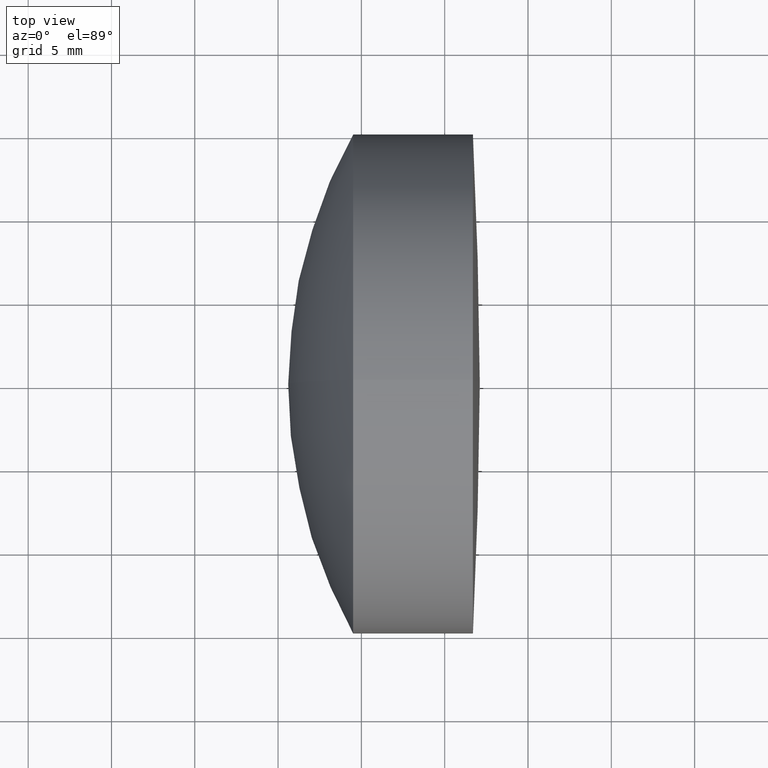
[diagram: clean part render]
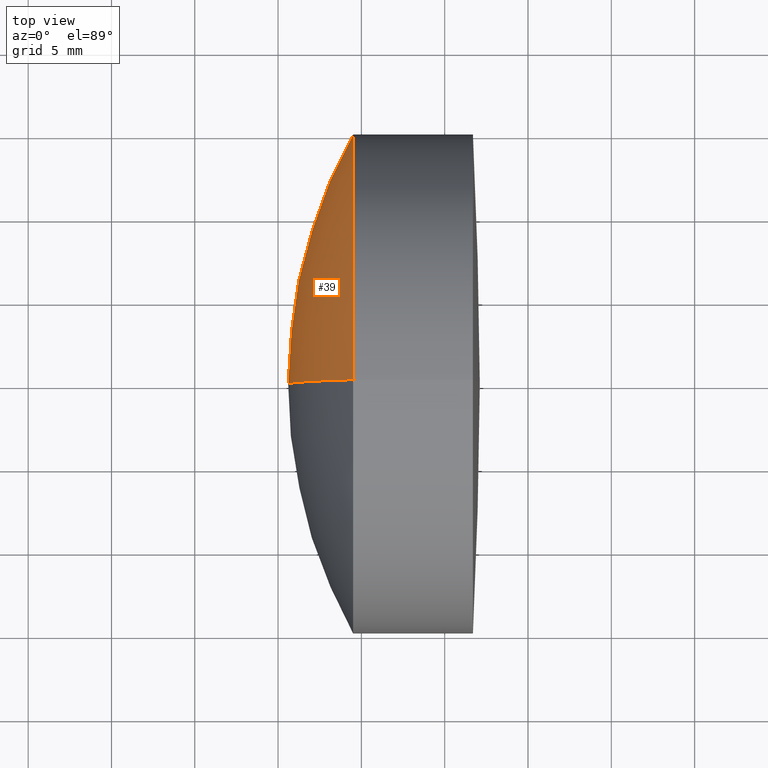
[diagram: same view with one face highlighted and labeled with its STEP entity id]
A machine part, top view. The second image highlights one B-rep face of the part: STEP entity #39.
In plain terms, the highlighted spherical surface has radius 30.8 mm.
Its self-contained STEP definition (entity closure, byte-faithful):
#11 = VERTEX_POINT ( 'NONE', #252 ) ;
#12 = ORIENTED_EDGE ( 'NONE', *, *, #108, .T. ) ;
#39 = ADVANCED_FACE ( 'NONE', ( #332 ), #110, .T. ) ;
#50 = DIRECTION ( 'NONE',  ( 0.0000000000000000000, 0.0000000000000000000, -1.000000000000000000 ) ) ;
#73 = DIRECTION ( 'NONE',  ( -0.0000000000000000000, 1.000000000000000000, 1.224646799147353200E-016 ) ) ;
#81 = CIRCLE ( 'NONE', #182, 30.79999999999997900 ) ;
#82 = CARTESIAN_POINT ( 'NONE',  ( 366.4069652250823900, 0.0000000000000000000, -1.604193031049230700E-015 ) ) ;
#84 = DIRECTION ( 'NONE',  ( 0.0000000000000000000, 0.0000000000000000000, 1.000000000000000000 ) ) ;
#85 = EDGE_LOOP ( 'NONE', ( #255, #12, #118 ) ) ;
#93 = AXIS2_PLACEMENT_3D ( 'NONE', #119, #277, #84 ) ;
#108 = EDGE_CURVE ( 'NONE', #11, #331, #261, .T. ) ;
#110 = SPHERICAL_SURFACE ( 'NONE', #259, 30.79999999999997900 ) ;
#118 = ORIENTED_EDGE ( 'NONE', *, *, #335, .F. ) ;
#119 = CARTESIAN_POINT ( 'NONE',  ( 339.5064076100440500, 0.0000000000000000000, 0.0000000000000000000 ) ) ;
#125 = CIRCLE ( 'NONE', #93, 14.99999999999999800 ) ;
#164 = CARTESIAN_POINT ( 'NONE',  ( 366.4069652250823900, 0.0000000000000000000, -1.604193031049230700E-015 ) ) ;
#170 = CARTESIAN_POINT ( 'NONE',  ( 339.5064076100440500, 0.0000000000000000000, 15.00000000000001800 ) ) ;
#182 = AXIS2_PLACEMENT_3D ( 'NONE', #82, #242, #50 ) ;
#204 = CARTESIAN_POINT ( 'NONE',  ( 366.4069652250823900, 0.0000000000000000000, -1.604193031049230700E-015 ) ) ;
#208 = AXIS2_PLACEMENT_3D ( 'NONE', #204, #73, #237 ) ;
#237 = DIRECTION ( 'NONE',  ( 0.0000000000000000000, -1.224646799147353200E-016, 1.000000000000000000 ) ) ;
#242 = DIRECTION ( 'NONE',  ( 0.0000000000000000000, -1.000000000000000000, 0.0000000000000000000 ) ) ;
#252 = CARTESIAN_POINT ( 'NONE',  ( 339.5064076100440500, 1.836970198721032300E-015, -15.00000000000002000 ) ) ;
#255 = ORIENTED_EDGE ( 'NONE', *, *, #284, .T. ) ;
#259 = AXIS2_PLACEMENT_3D ( 'NONE', #164, #298, #260 ) ;
#260 = DIRECTION ( 'NONE',  ( 0.0000000000000000000, 0.0000000000000000000, 1.000000000000000000 ) ) ;
#261 = CIRCLE ( 'NONE', #208, 30.79999999999997900 ) ;
#277 = DIRECTION ( 'NONE',  ( -1.000000000000000000, -0.0000000000000000000, -0.0000000000000000000 ) ) ;
#279 = VERTEX_POINT ( 'NONE', #170 ) ;
#284 = EDGE_CURVE ( 'NONE', #279, #11, #125, .T. ) ;
#298 = DIRECTION ( 'NONE',  ( 0.0000000000000000000, 1.000000000000000000, 0.0000000000000000000 ) ) ;
#324 = CARTESIAN_POINT ( 'NONE',  ( 335.6069652250823800, 0.0000000000000000000, 2.817630396376919300E-016 ) ) ;
#331 = VERTEX_POINT ( 'NONE', #324 ) ;
#332 = FACE_OUTER_BOUND ( 'NONE', #85, .T. ) ;
#335 = EDGE_CURVE ( 'NONE', #279, #331, #81, .T. ) ;